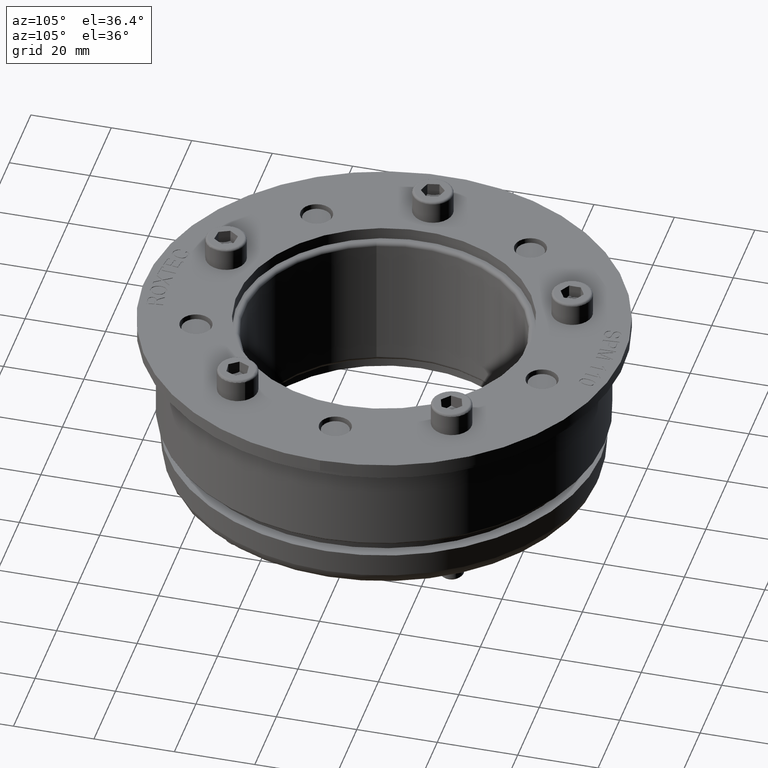
[diagram: clean part render]
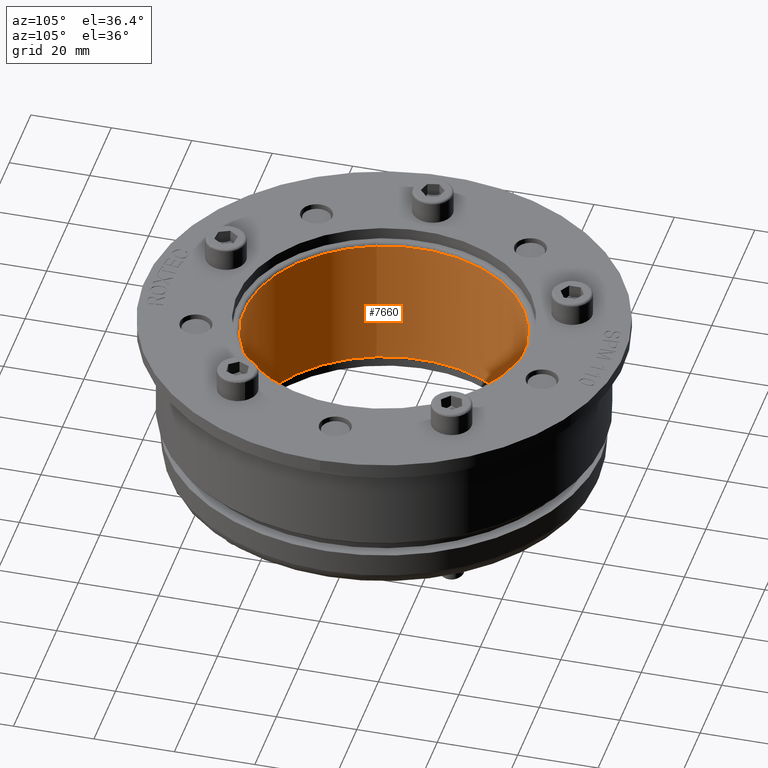
[diagram: same view with one face highlighted and labeled with its STEP entity id]
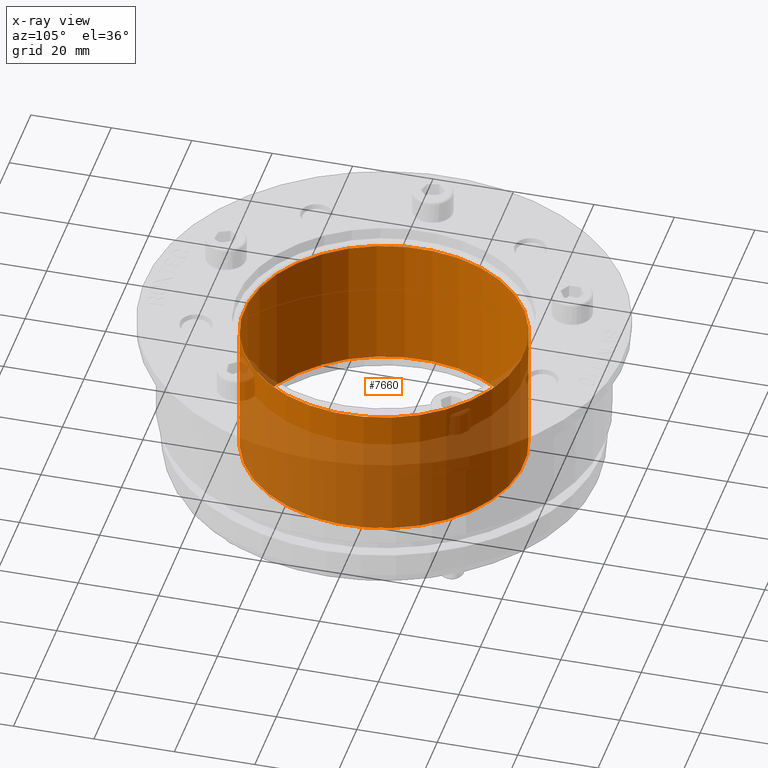
[diagram: x-ray of the same camera — body ghosted, the highlighted face saturated]
A machine part, auxiliary view. The second image highlights one B-rep face of the part: STEP entity #7660.
The next image is the same camera in x-ray: the body ghosted, the highlighted face saturated — about 41% of this face is hidden behind the body in this view.
In plain terms, the highlighted cylindrical surface (bore or boss wall) has radius 34.75 mm, axis along (-0, 0, 1).
Its self-contained STEP definition (entity closure, byte-faithful):
#192=CYLINDRICAL_SURFACE('',#8309,34.75);
#368=CIRCLE('',#8306,34.75);
#369=CIRCLE('',#8307,34.75);
#371=CIRCLE('',#8310,34.75);
#961=FACE_OUTER_BOUND('',#1378,.T.);
#1378=EDGE_LOOP('',(#5516,#5517,#5518,#5519,#5520));
#1907=LINE('',#11288,#2552);
#2552=VECTOR('',#9177,34.75);
#3268=VERTEX_POINT('',#11280);
#3269=VERTEX_POINT('',#11282);
#3270=VERTEX_POINT('',#11287);
#4140=EDGE_CURVE('',#3268,#3269,#368,.T.);
#4141=EDGE_CURVE('',#3269,#3268,#369,.T.);
#4143=EDGE_CURVE('',#3269,#3270,#1907,.T.);
#4144=EDGE_CURVE('',#3270,#3270,#371,.T.);
#5516=ORIENTED_EDGE('',*,*,#4141,.F.);
#5517=ORIENTED_EDGE('',*,*,#4143,.T.);
#5518=ORIENTED_EDGE('',*,*,#4144,.F.);
#5519=ORIENTED_EDGE('',*,*,#4143,.F.);
#5520=ORIENTED_EDGE('',*,*,#4140,.F.);
#7660=ADVANCED_FACE('',(#961),#192,.F.);
#8306=AXIS2_PLACEMENT_3D('',#11283,#9169,#9170);
#8307=AXIS2_PLACEMENT_3D('',#11284,#9171,#9172);
#8309=AXIS2_PLACEMENT_3D('',#11286,#9175,#9176);
#8310=AXIS2_PLACEMENT_3D('',#11289,#9178,#9179);
#9169=DIRECTION('center_axis',(0.,0.,1.));
#9170=DIRECTION('ref_axis',(-1.,0.,0.));
#9171=DIRECTION('center_axis',(0.,0.,1.));
#9172=DIRECTION('ref_axis',(-1.,0.,0.));
#9175=DIRECTION('center_axis',(0.,0.,1.));
#9176=DIRECTION('ref_axis',(-1.,0.,0.));
#9177=DIRECTION('',(0.,0.,1.));
#9178=DIRECTION('center_axis',(0.,0.,-1.));
#9179=DIRECTION('ref_axis',(-1.,0.,0.));
#11280=CARTESIAN_POINT('',(-34.75,-3.70053611472447E-15,1.));
#11282=CARTESIAN_POINT('',(34.75,4.81075913934963E-15,1.));
#11283=CARTESIAN_POINT('Origin',(-5.55111512312578E-16,5.55111512312578E-16,
1.));
#11284=CARTESIAN_POINT('Origin',(-5.55111512312578E-16,5.55111512312578E-16,
1.));
#11286=CARTESIAN_POINT('Origin',(-5.55111512312578E-16,5.55111512312578E-16,
0.));
#11287=CARTESIAN_POINT('',(34.75,-3.70053611472447E-15,34.));
#11288=CARTESIAN_POINT('',(34.75,4.81075913934963E-15,0.));
#11289=CARTESIAN_POINT('Origin',(-5.55111512312578E-16,5.55111512312578E-16,
34.));